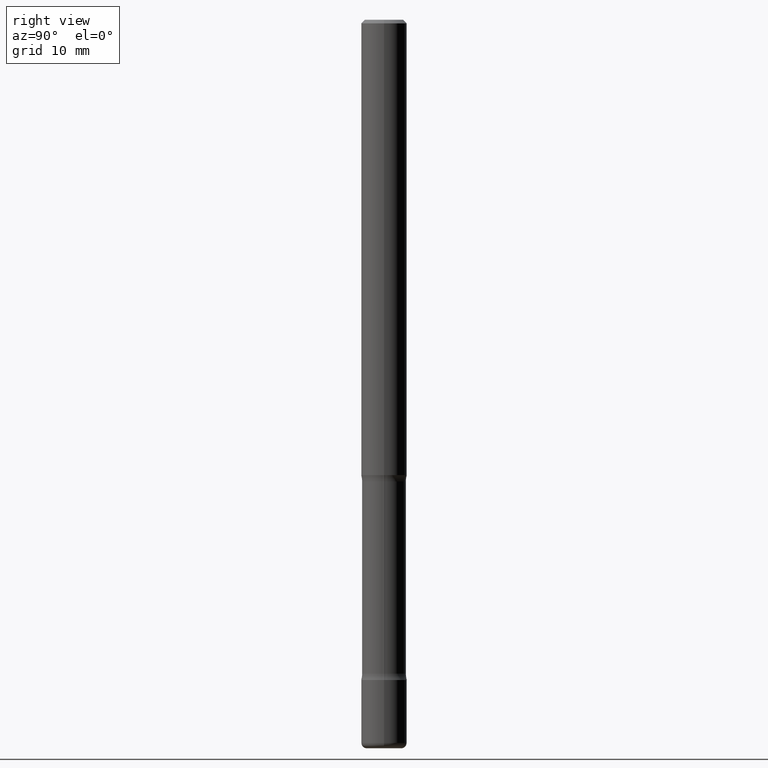
[diagram: clean part render]
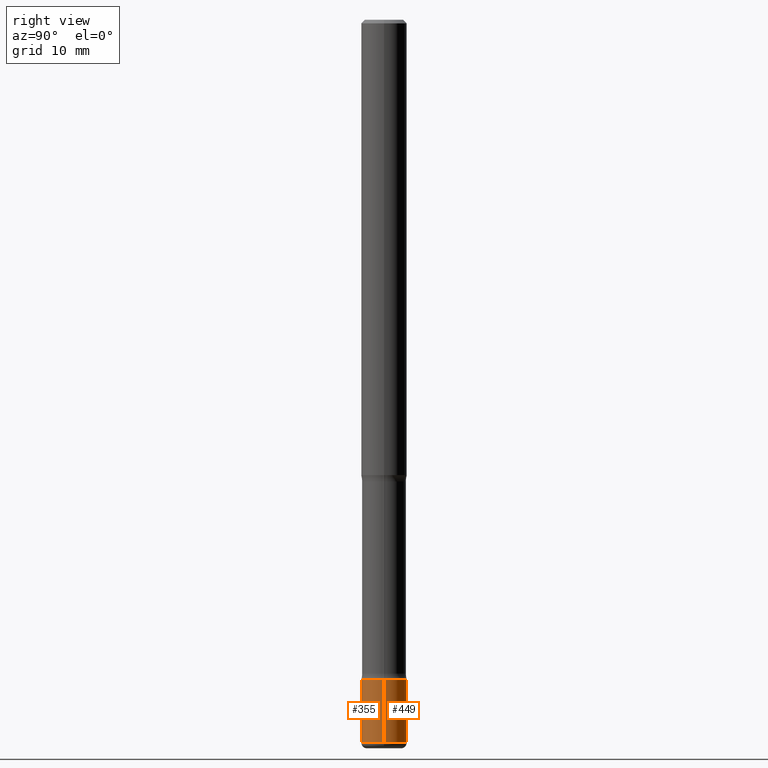
[diagram: same view with one multi-face feature highlighted, each face labeled with its STEP entity id]
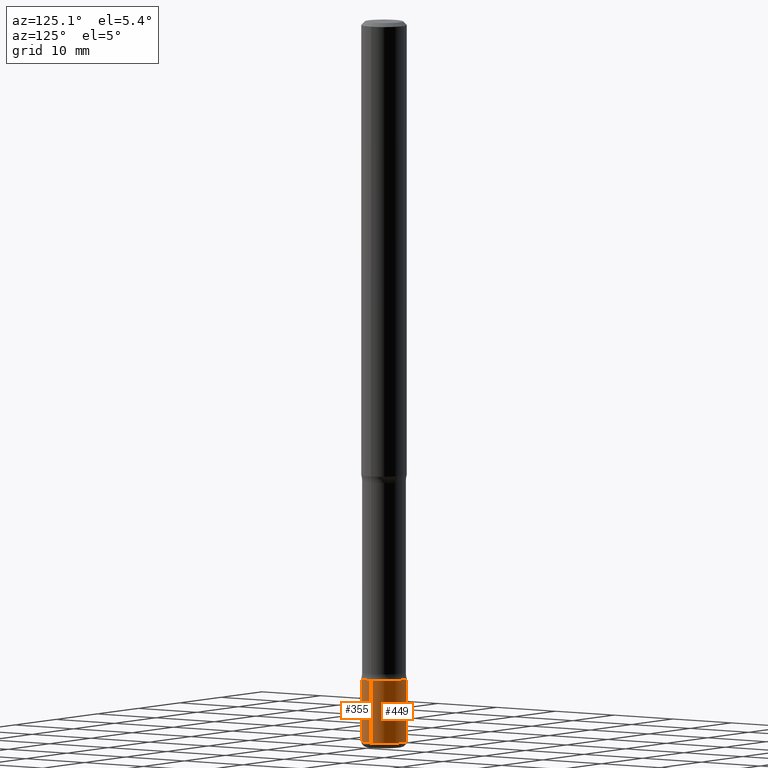
[diagram: same view with one multi-face feature highlighted, each face labeled with its STEP entity id]
A machine part, right view. The highlighted faces form ONE feature: a constant-radius fillet chain: 2 tangent blend faces with common blend radius 3.175 mm. The faces share edges in the B-rep.
A second angle (auxiliary view) of the same feature is appended — it is thin or edge-on in the first view.
Their STEP definitions:
[1] entity #449 (Cylinder):
#28 = AXIS2_PLACEMENT_3D ( 'NONE', #196, #511, #762 ) ;
#31 = CYLINDRICAL_SURFACE ( 'NONE', #318, 0.1250000000000000000 ) ;
#32 = VERTEX_POINT ( 'NONE', #54 ) ;
#37 = DIRECTION ( 'NONE',  ( 1.000000000000000000, -6.982962677686266711E-15, 4.876176775795935793E-29 ) ) ;
#52 = EDGE_CURVE ( 'NONE', #332, #588, #245, .T. ) ;
#54 = CARTESIAN_POINT ( 'NONE',  ( -0.1250000000000000000, -1.237072196455672054E-14, -3.624999999999999556 ) ) ;
#83 = ORIENTED_EDGE ( 'NONE', *, *, #52, .F. ) ;
#97 = CARTESIAN_POINT ( 'NONE',  ( -0.1249999999999998473, -1.297300249550716373E-14, -3.970000000000000195 ) ) ;
#112 = LINE ( 'NONE', #802, #423 ) ;
#119 = EDGE_CURVE ( 'NONE', #332, #784, #582, .T. ) ;
#123 = DIRECTION ( 'NONE',  ( -2.445468806185136597E-29, 3.491481338843145583E-15, 1.000000000000000000 ) ) ;
#149 = VECTOR ( 'NONE', #375, 39.37007874015748143 ) ;
#180 = CARTESIAN_POINT ( 'NONE',  ( 0.1250000000000000000, -1.352949018801718435E-14, -3.624999999999999556 ) ) ;
#196 = CARTESIAN_POINT ( 'NONE',  ( 8.864824422421120163E-29, -1.265661985330640259E-14, -3.624999999999999556 ) ) ;
#198 = CARTESIAN_POINT ( 'NONE',  ( 0.1249999999999998473, -1.473405124991807072E-14, -3.970000000000000195 ) ) ;
#240 = ORIENTED_EDGE ( 'NONE', *, *, #328, .F. ) ;
#245 = LINE ( 'NONE', #506, #149 ) ;
#282 = DIRECTION ( 'NONE',  ( -2.445468806185136597E-29, 3.491481338843145583E-15, 1.000000000000000000 ) ) ;
#318 = AXIS2_PLACEMENT_3D ( 'NONE', #735, #282, #37 ) ;
#328 = EDGE_CURVE ( 'NONE', #588, #32, #531, .T. ) ;
#332 = VERTEX_POINT ( 'NONE', #198 ) ;
#375 = DIRECTION ( 'NONE',  ( -2.445468806185136877E-29, 3.491481338843145188E-15, 1.000000000000000000 ) ) ;
#410 = AXIS2_PLACEMENT_3D ( 'NONE', #575, #123, #441 ) ;
#423 = VECTOR ( 'NONE', #749, 39.37007874015748143 ) ;
#441 = DIRECTION ( 'NONE',  ( 1.000000000000000000, -6.982962677686262766E-15, 0.000000000000000000 ) ) ;
#449 = ADVANCED_FACE ( 'NONE', ( #542 ), #31, .T. ) ;
#453 = ORIENTED_EDGE ( 'NONE', *, *, #119, .T. ) ;
#506 = CARTESIAN_POINT ( 'NONE',  ( 0.1250000000000000000, -8.728703347107833388E-16, 6.095220969744919741E-30 ) ) ;
#511 = DIRECTION ( 'NONE',  ( -2.445468806185136597E-29, 3.491481338843145583E-15, 1.000000000000000000 ) ) ;
#517 = EDGE_CURVE ( 'NONE', #784, #32, #112, .T. ) ;
#531 = CIRCLE ( 'NONE', #28, 0.1250000000000000000 ) ;
#542 = FACE_OUTER_BOUND ( 'NONE', #639, .T. ) ;
#575 = CARTESIAN_POINT ( 'NONE',  ( 9.708511160554992872E-29, -1.386118091520728738E-14, -3.970000000000000195 ) ) ;
#582 = CIRCLE ( 'NONE', #410, 0.1250000000000000000 ) ;
#588 = VERTEX_POINT ( 'NONE', #180 ) ;
#639 = EDGE_LOOP ( 'NONE', ( #453, #666, #240, #83 ) ) ;
#666 = ORIENTED_EDGE ( 'NONE', *, *, #517, .T. ) ;
#735 = CARTESIAN_POINT ( 'NONE',  ( 0.000000000000000000, 0.000000000000000000, 0.000000000000000000 ) ) ;
#749 = DIRECTION ( 'NONE',  ( -2.445468806185136877E-29, 3.491481338843145188E-15, 1.000000000000000000 ) ) ;
#762 = DIRECTION ( 'NONE',  ( 1.000000000000000000, -6.982962677686262766E-15, 0.000000000000000000 ) ) ;
#784 = VERTEX_POINT ( 'NONE', #97 ) ;
#802 = CARTESIAN_POINT ( 'NONE',  ( -0.1250000000000000000, 8.881784197001252323E-16, -6.148668862818632227E-30 ) ) ;
[2] entity #355 (Cylinder):
#20 = ORIENTED_EDGE ( 'NONE', *, *, #207, .T. ) ;
#25 = DIRECTION ( 'NONE',  ( 1.000000000000000000, -6.982962677686266711E-15, 4.876176775795935793E-29 ) ) ;
#32 = VERTEX_POINT ( 'NONE', #54 ) ;
#45 = ORIENTED_EDGE ( 'NONE', *, *, #587, .F. ) ;
#51 = EDGE_LOOP ( 'NONE', ( #705, #20, #415, #45 ) ) ;
#52 = EDGE_CURVE ( 'NONE', #332, #588, #245, .T. ) ;
#54 = CARTESIAN_POINT ( 'NONE',  ( -0.1250000000000000000, -1.237072196455672054E-14, -3.624999999999999556 ) ) ;
#78 = DIRECTION ( 'NONE',  ( 1.000000000000000000, -6.982962677686262766E-15, 0.000000000000000000 ) ) ;
#97 = CARTESIAN_POINT ( 'NONE',  ( -0.1249999999999998473, -1.297300249550716373E-14, -3.970000000000000195 ) ) ;
#112 = LINE ( 'NONE', #802, #423 ) ;
#143 = DIRECTION ( 'NONE',  ( -2.445468806185136597E-29, 3.491481338843145583E-15, 1.000000000000000000 ) ) ;
#149 = VECTOR ( 'NONE', #375, 39.37007874015748143 ) ;
#180 = CARTESIAN_POINT ( 'NONE',  ( 0.1250000000000000000, -1.352949018801718435E-14, -3.624999999999999556 ) ) ;
#188 = DIRECTION ( 'NONE',  ( 1.000000000000000000, -6.982962677686262766E-15, 0.000000000000000000 ) ) ;
#198 = CARTESIAN_POINT ( 'NONE',  ( 0.1249999999999998473, -1.473405124991807072E-14, -3.970000000000000195 ) ) ;
#207 = EDGE_CURVE ( 'NONE', #784, #332, #461, .T. ) ;
#245 = LINE ( 'NONE', #506, #149 ) ;
#332 = VERTEX_POINT ( 'NONE', #198 ) ;
#342 = DIRECTION ( 'NONE',  ( -2.445468806185136597E-29, 3.491481338843145583E-15, 1.000000000000000000 ) ) ;
#343 = AXIS2_PLACEMENT_3D ( 'NONE', #711, #143, #78 ) ;
#355 = ADVANCED_FACE ( 'NONE', ( #483 ), #421, .T. ) ;
#369 = CARTESIAN_POINT ( 'NONE',  ( 8.864824422421120163E-29, -1.265661985330640259E-14, -3.624999999999999556 ) ) ;
#375 = DIRECTION ( 'NONE',  ( -2.445468806185136877E-29, 3.491481338843145188E-15, 1.000000000000000000 ) ) ;
#415 = ORIENTED_EDGE ( 'NONE', *, *, #52, .T. ) ;
#421 = CYLINDRICAL_SURFACE ( 'NONE', #559, 0.1250000000000000000 ) ;
#423 = VECTOR ( 'NONE', #749, 39.37007874015748143 ) ;
#461 = CIRCLE ( 'NONE', #343, 0.1250000000000000000 ) ;
#483 = FACE_OUTER_BOUND ( 'NONE', #51, .T. ) ;
#491 = CIRCLE ( 'NONE', #598, 0.1250000000000000000 ) ;
#492 = DIRECTION ( 'NONE',  ( -2.445468806185136597E-29, 3.491481338843145583E-15, 1.000000000000000000 ) ) ;
#506 = CARTESIAN_POINT ( 'NONE',  ( 0.1250000000000000000, -8.728703347107833388E-16, 6.095220969744919741E-30 ) ) ;
#517 = EDGE_CURVE ( 'NONE', #784, #32, #112, .T. ) ;
#559 = AXIS2_PLACEMENT_3D ( 'NONE', #675, #342, #25 ) ;
#587 = EDGE_CURVE ( 'NONE', #32, #588, #491, .T. ) ;
#588 = VERTEX_POINT ( 'NONE', #180 ) ;
#598 = AXIS2_PLACEMENT_3D ( 'NONE', #369, #492, #188 ) ;
#675 = CARTESIAN_POINT ( 'NONE',  ( 0.000000000000000000, 0.000000000000000000, 0.000000000000000000 ) ) ;
#705 = ORIENTED_EDGE ( 'NONE', *, *, #517, .F. ) ;
#711 = CARTESIAN_POINT ( 'NONE',  ( 9.708511160554992872E-29, -1.386118091520728738E-14, -3.970000000000000195 ) ) ;
#749 = DIRECTION ( 'NONE',  ( -2.445468806185136877E-29, 3.491481338843145188E-15, 1.000000000000000000 ) ) ;
#784 = VERTEX_POINT ( 'NONE', #97 ) ;
#802 = CARTESIAN_POINT ( 'NONE',  ( -0.1250000000000000000, 8.881784197001252323E-16, -6.148668862818632227E-30 ) ) ;